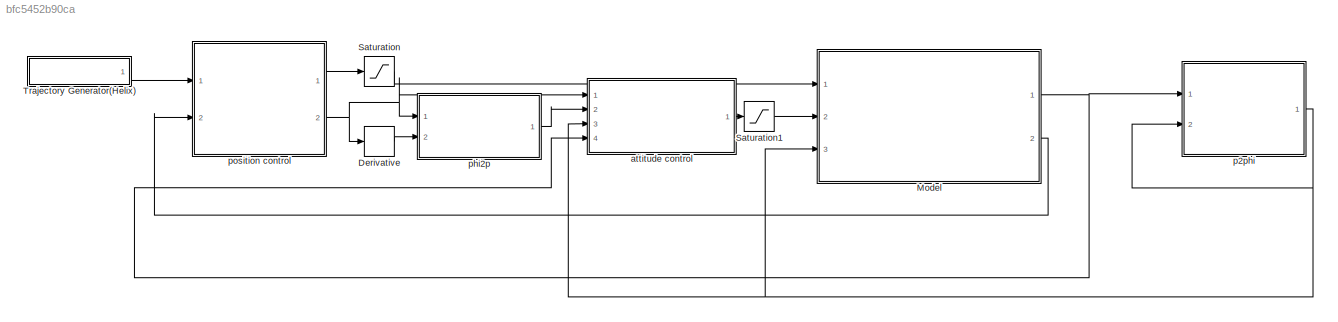
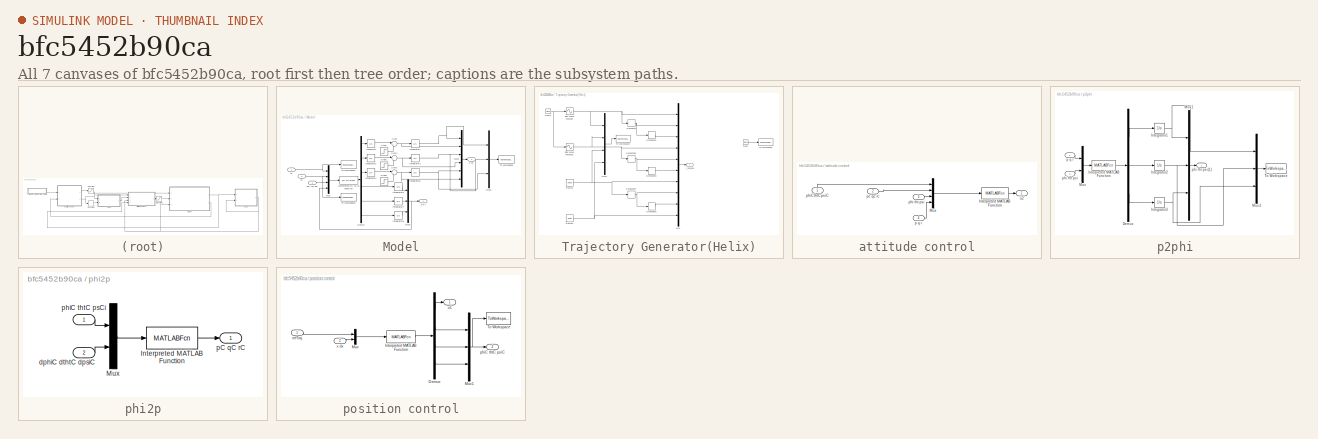
[diagram: thumbnail index - all 7 canvases of the model, root first then tree order]
MODEL slx_bfc5452b90ca
KIND model
CONFIG AbsTol = auto
CONFIG EnableMultiTasking = on
CONFIG FixedStep = 0.01
CONFIG MaxStep = auto
CONFIG MinStep = auto
CONFIG RelTol = 1e-3
CONFIG SampleTimeConstraint = Unconstrained
CONFIG SolverName = ode3
CONFIG StartTime = 0.0
CONFIG StopTime = 60
BLOCK [Derivative] Derivative
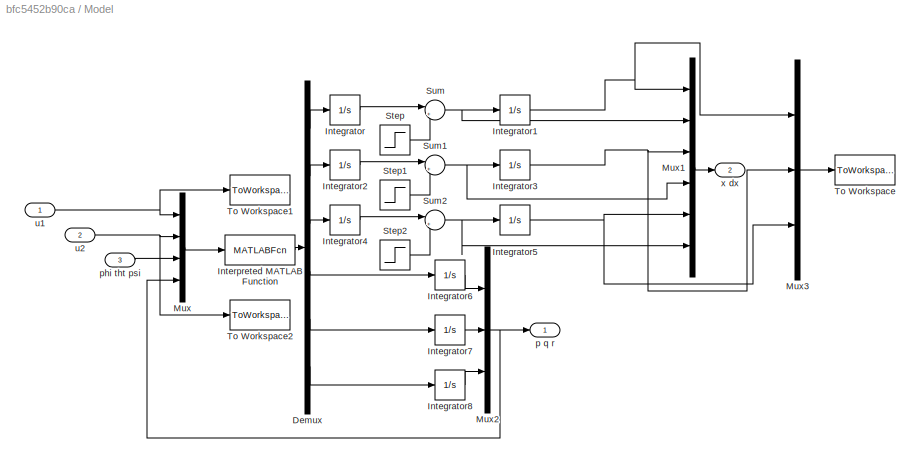
BLOCK [SubSystem] Model
  Ports = [3, 2]
  RequestExecContextInheritance = off
BLOCK [Demux] Model/Demux
  Outputs = 6
  Ports = [1, 6]
BLOCK [Integrator] Model/Integrator
  Ports = [1, 1]
BLOCK [Integrator] Model/Integrator1
  Ports = [1, 1]
BLOCK [Integrator] Model/Integrator2
  Ports = [1, 1]
BLOCK [Integrator] Model/Integrator3
  InitialCondition = 8
  Ports = [1, 1]
BLOCK [Integrator] Model/Integrator4
  Ports = [1, 1]
BLOCK [Integrator] Model/Integrator5
  InitialCondition = -8
  Ports = [1, 1]
BLOCK [Integrator] Model/Integrator6
  Ports = [1, 1]
BLOCK [Integrator] Model/Integrator7
  Ports = [1, 1]
BLOCK [Integrator] Model/Integrator8
  Ports = [1, 1]
BLOCK [MATLABFcn] Model/Interpreted MATLAB Function
  MATLABFcn = model2rotors(u)
  OutputDimensions = 6
  Ports = [1, 1]
BLOCK [Mux] Model/Mux
  DisplayOption = bar
  Ports = [4, 1]
BLOCK [Mux] Model/Mux1
  DisplayOption = bar
  Inputs = 6
  Ports = [6, 1]
BLOCK [Mux] Model/Mux2
  DisplayOption = bar
  Inputs = 3
  Ports = [3, 1]
BLOCK [Mux] Model/Mux3
  DisplayOption = bar
  Inputs = 3
  Ports = [3, 1]
BLOCK [Step] Model/Step
  After = 0
  SampleTime = 0
  Time = 25
BLOCK [Step] Model/Step1
  After = 0
  SampleTime = 0
  Time = 25
BLOCK [Step] Model/Step2
  After = 0
  SampleTime = 0
  Time = 25
BLOCK [Sum] Model/Sum
  Inputs = |++
  Ports = [2, 1]
BLOCK [Sum] Model/Sum1
  Inputs = |++
  Ports = [2, 1]
BLOCK [Sum] Model/Sum2
  Inputs = |++
  Ports = [2, 1]
BLOCK [ToWorkspace] Model/To Workspace
  FixptAsFi = on
  MaxDataPoints = inf
  Ports = [1]
  SampleTime = -1
  VariableName = xyz
BLOCK [ToWorkspace] Model/To Workspace1
  FixptAsFi = on
  MaxDataPoints = inf
  Ports = [1]
  SampleTime = -1
  VariableName = u1
BLOCK [ToWorkspace] Model/To Workspace2
  FixptAsFi = on
  MaxDataPoints = inf
  Ports = [1]
  SampleTime = -1
  VariableName = u2
BLOCK [Outport] Model/p q r
BLOCK [Inport] Model/phi tht psi
  Port = 3
BLOCK [Inport] Model/u1
BLOCK [Inport] Model/u2
  Port = 2
BLOCK [Outport] Model/x dx
  Port = 2
BLOCK [Saturate] Saturation
  LowerLimit = 0
  UpperLimit = 2*m*g
BLOCK [Saturate] Saturation1
  LowerLimit = -0.2
  UpperLimit = 0.2
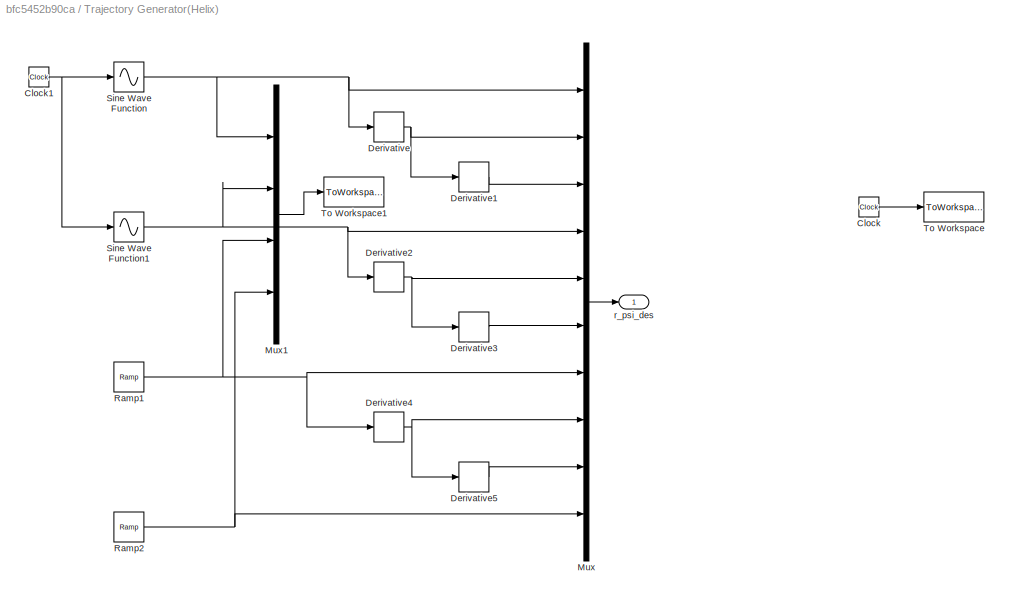
BLOCK [SubSystem] Trajectory Generator(Helix)
  Ports = [0, 1]
  RequestExecContextInheritance = off
BLOCK [Clock] Trajectory Generator(Helix)/Clock
BLOCK [Clock] Trajectory Generator(Helix)/Clock1
BLOCK [Derivative] Trajectory Generator(Helix)/Derivative
BLOCK [Derivative] Trajectory Generator(Helix)/Derivative1
BLOCK [Derivative] Trajectory Generator(Helix)/Derivative2
BLOCK [Derivative] Trajectory Generator(Helix)/Derivative3
BLOCK [Derivative] Trajectory Generator(Helix)/Derivative4
BLOCK [Derivative] Trajectory Generator(Helix)/Derivative5
BLOCK [Mux] Trajectory Generator(Helix)/Mux
  DisplayOption = bar
  Inputs = 10
  Ports = [10, 1]
BLOCK [Mux] Trajectory Generator(Helix)/Mux1
  DisplayOption = bar
  Ports = [4, 1]
BLOCK [Reference] Trajectory Generator(Helix)/Ramp1  REF=simulink/Sources/Ramp
  Ports = [0, 1]
  SourceBlock = simulink/Sources/Ramp
  SourceProductBaseCode = SL
  SourceType = Ramp
BLOCK [Reference] Trajectory Generator(Helix)/Ramp2  REF=simulink/Sources/Ramp
  Ports = [0, 1]
  SourceBlock = simulink/Sources/Ramp
  SourceProductBaseCode = SL
  SourceType = Ramp
BLOCK [Sin] Trajectory Generator(Helix)/Sine Wave Function
  Amplitude = 8
  Frequency = 0.1
  Ports = [1, 1]
  SampleTime = 0
  TimeSource = Use external signal
BLOCK [Sin] Trajectory Generator(Helix)/Sine Wave Function1
  Amplitude = 8
  Frequency = 0.1
  Phase = pi/2
  Ports = [1, 1]
  SampleTime = 0
  TimeSource = Use external signal
BLOCK [ToWorkspace] Trajectory Generator(Helix)/To Workspace
  FixptAsFi = on
  MaxDataPoints = inf
  Ports = [1]
  SampleTime = -1
  VariableName = t
BLOCK [ToWorkspace] Trajectory Generator(Helix)/To Workspace1
  FixptAsFi = on
  MaxDataPoints = inf
  Ports = [1]
  SampleTime = -1
  VariableName = ref
BLOCK [Outport] Trajectory Generator(Helix)/r_psi_des
BLOCK [SubSystem] attitude control
  Ports = [4, 1]
  RequestExecContextInheritance = off
BLOCK [MATLABFcn] attitude control/Interpreted MATLAB Function
  MATLABFcn = attitude_control(u)
  OutputDimensions = 3
  Ports = [1, 1]
BLOCK [Mux] attitude control/Mux
  DisplayOption = bar
  Ports = [4, 1]
BLOCK [Inport] attitude control/p q r
  Port = 4
BLOCK [Inport] attitude control/pc qc rc
  Port = 2
BLOCK [Inport] attitude control/phi tht psi
  Port = 3
BLOCK [Inport] attitude control/phiC thtC psiC
  NameLocation = right
BLOCK [Outport] attitude control/u2
BLOCK [SubSystem] p2phi
  Ports = [2, 1]
  RequestExecContextInheritance = off
BLOCK [Demux] p2phi/Demux
  Outputs = 3
  Ports = [1, 3]
BLOCK [Integrator] p2phi/Integrator1
  Ports = [1, 1]
BLOCK [Integrator] p2phi/Integrator2
  Ports = [1, 1]
BLOCK [Integrator] p2phi/Integrator3
  Ports = [1, 1]
BLOCK [MATLABFcn] p2phi/Interpreted MATLAB Function
  MATLABFcn = pqr2dThtdPhidPsi(u)
  OutputDimensions = 3
  Ports = [1, 1]
BLOCK [Mux] p2phi/Mux
  DisplayOption = bar
  Inputs = 2
  Ports = [2, 1]
BLOCK [Mux] p2phi/Mux1
  DisplayOption = bar
  Inputs = 3
  Ports = [3, 1]
BLOCK [Mux] p2phi/Mux3
  DisplayOption = bar
  Inputs = 3
  Ports = [3, 1]
BLOCK [ToWorkspace] p2phi/To Workspace
  FixptAsFi = on
  MaxDataPoints = inf
  Ports = [1]
  SampleTime = -1
  VariableName = phi_tht_psi
BLOCK [Inport] p2phi/p q r
BLOCK [Inport] p2phi/phi tht psi
  Port = 2
BLOCK [Outport] p2phi/phi tht psi(1)
BLOCK [SubSystem] phi2p
  Ports = [2, 1]
  RequestExecContextInheritance = off
BLOCK [MATLABFcn] phi2p/Interpreted MATLAB Function
  MATLABFcn = dThtdPhidPsi2pqr(u)
  OutputDimensions = 3
  Ports = [1, 1]
BLOCK [Mux] phi2p/Mux
  DisplayOption = bar
  Inputs = 2
  Ports = [2, 1]
BLOCK [Inport] phi2p/dphiC dthtC dpsiC
  Port = 2
BLOCK [Outport] phi2p/pC qC rC
BLOCK [Inport] phi2p/phiC thtC psCi
BLOCK [SubSystem] position control
  Ports = [2, 2]
  RequestExecContextInheritance = off
BLOCK [Demux] position control/Demux
  Ports = [1, 4]
BLOCK [MATLABFcn] position control/Interpreted MATLAB Function
  MATLABFcn = position_control(u)
  OutputDimensions = 4
  Ports = [1, 1]
BLOCK [Mux] position control/Mux
  DisplayOption = bar
  Inputs = 2
  Ports = [2, 1]
BLOCK [Mux] position control/Mux1
  DisplayOption = bar
  Inputs = 3
  Ports = [3, 1]
BLOCK [ToWorkspace] position control/To Workspace
  FixptAsFi = on
  MaxDataPoints = inf
  Ports = [1]
  SampleTime = -1
  VariableName = angc
BLOCK [Outport] position control/phiC thtC psiC
  Port = 2
BLOCK [Inport] position control/refTraj
BLOCK [Outport] position control/u1
BLOCK [Inport] position control/x dx
  Port = 2
LINE Derivative:1 -> phi2p:2
LINE Model/Demux:1 -> Model/Integrator:1
LINE Model/Demux:2 -> Model/Integrator2:1
LINE Model/Demux:3 -> Model/Integrator4:1
LINE Model/Demux:4 -> Model/Integrator6:1
LINE Model/Demux:5 -> Model/Integrator7:1
LINE Model/Demux:6 -> Model/Integrator8:1
NET Model/Integrator1:1 -> Model/Mux1:1, Model/Mux3:1
LINE Model/Integrator2:1 -> Model/Sum1:1
NET Model/Integrator3:1 -> Model/Mux1:3, Model/Mux3:2
LINE Model/Integrator4:1 -> Model/Sum2:1
NET Model/Integrator5:1 -> Model/Mux1:5, Model/Mux3:3
LINE Model/Integrator6:1 -> Model/Mux2:1
LINE Model/Integrator7:1 -> Model/Mux2:2
LINE Model/Integrator8:1 -> Model/Mux2:3
LINE Model/Integrator:1 -> Model/Sum:1
LINE Model/Interpreted MATLAB Function:1 -> Model/Demux:1
LINE Model/Mux1:1 -> Model/x dx:1
NET Model/Mux2:1 -> Model/Mux:4, Model/p q r:1
LINE Model/Mux3:1 -> Model/To Workspace:1
LINE Model/Mux:1 -> Model/Interpreted MATLAB Function:1
LINE Model/Step1:1 -> Model/Sum1:2
LINE Model/Step2:1 -> Model/Sum2:2
LINE Model/Step:1 -> Model/Sum:2
NET Model/Sum1:1 -> Model/Integrator3:1, Model/Mux1:4
NET Model/Sum2:1 -> Model/Integrator5:1, Model/Mux1:6
NET Model/Sum:1 -> Model/Integrator1:1, Model/Mux1:2
LINE Model/phi tht psi:1 -> Model/Mux:3
NET Model/u1:1 -> Model/Mux:1, Model/To Workspace1:1
NET Model/u2:1 -> Model/Mux:2, Model/To Workspace2:1
NET Model:1 -> attitude control:4, p2phi:1
LINE Model:2 -> position control:2
LINE Saturation1:1 -> Model:2
LINE Saturation:1 -> Model:1
NET Trajectory Generator(Helix)/Clock1:1 -> Trajectory Generator(Helix)/Sine Wave Function1:1, Trajectory Generator(Helix)/Sine Wave Function:1
LINE Trajectory Generator(Helix)/Clock:1 -> Trajectory Generator(Helix)/To Workspace:1
LINE Trajectory Generator(Helix)/Derivative1:1 -> Trajectory Generator(Helix)/Mux:3
NET Trajectory Generator(Helix)/Derivative2:1 -> Trajectory Generator(Helix)/Derivative3:1, Trajectory Generator(Helix)/Mux:5
LINE Trajectory Generator(Helix)/Derivative3:1 -> Trajectory Generator(Helix)/Mux:6
NET Trajectory Generator(Helix)/Derivative4:1 -> Trajectory Generator(Helix)/Derivative5:1, Trajectory Generator(Helix)/Mux:8
LINE Trajectory Generator(Helix)/Derivative5:1 -> Trajectory Generator(Helix)/Mux:9
NET Trajectory Generator(Helix)/Derivative:1 -> Trajectory Generator(Helix)/Derivative1:1, Trajectory Generator(Helix)/Mux:2
LINE Trajectory Generator(Helix)/Mux1:1 -> Trajectory Generator(Helix)/To Workspace1:1
LINE Trajectory Generator(Helix)/Mux:1 -> Trajectory Generator(Helix)/r_psi_des:1
NET Trajectory Generator(Helix)/Ramp1:1 -> Trajectory Generator(Helix)/Derivative4:1, Trajectory Generator(Helix)/Mux1:3, Trajectory Generator(Helix)/Mux:7
NET Trajectory Generator(Helix)/Ramp2:1 -> Trajectory Generator(Helix)/Mux1:4, Trajectory Generator(Helix)/Mux:10
NET Trajectory Generator(Helix)/Sine Wave Function1:1 -> Trajectory Generator(Helix)/Derivative2:1, Trajectory Generator(Helix)/Mux1:2, Trajectory Generator(Helix)/Mux:4
NET Trajectory Generator(Helix)/Sine Wave Function:1 -> Trajectory Generator(Helix)/Derivative:1, Trajectory Generator(Helix)/Mux1:1, Trajectory Generator(Helix)/Mux:1
LINE Trajectory Generator(Helix):1 -> position control:1
LINE attitude control/Interpreted MATLAB Function:1 -> attitude control/u2:1
LINE attitude control/Mux:1 -> attitude control/Interpreted MATLAB Function:1
LINE attitude control/p q r:1 -> attitude control/Mux:4
LINE attitude control/pc qc rc:1 -> attitude control/Mux:2
LINE attitude control/phi tht psi:1 -> attitude control/Mux:3
LINE attitude control/phiC thtC psiC:1 -> attitude control/Mux:1
LINE attitude control:1 -> Saturation1:1
LINE p2phi/Demux:1 -> p2phi/Integrator1:1
LINE p2phi/Demux:2 -> p2phi/Integrator2:1
LINE p2phi/Demux:3 -> p2phi/Integrator3:1
NET p2phi/Integrator1:1 -> p2phi/Mux1:1, p2phi/Mux3:1
NET p2phi/Integrator2:1 -> p2phi/Mux1:2, p2phi/Mux3:2
NET p2phi/Integrator3:1 -> p2phi/Mux1:3, p2phi/Mux3:3
LINE p2phi/Interpreted MATLAB Function:1 -> p2phi/Demux:1
LINE p2phi/Mux1:1 -> p2phi/phi tht psi(1):1
LINE p2phi/Mux3:1 -> p2phi/To Workspace:1
LINE p2phi/Mux:1 -> p2phi/Interpreted MATLAB Function:1
LINE p2phi/p q r:1 -> p2phi/Mux:1
LINE p2phi/phi tht psi:1 -> p2phi/Mux:2
NET p2phi:1 -> Model:3, attitude control:3, p2phi:2
LINE phi2p/Interpreted MATLAB Function:1 -> phi2p/pC qC rC:1
LINE phi2p/Mux:1 -> phi2p/Interpreted MATLAB Function:1
LINE phi2p/dphiC dthtC dpsiC:1 -> phi2p/Mux:2
LINE phi2p/phiC thtC psCi:1 -> phi2p/Mux:1
LINE phi2p:1 -> attitude control:2
LINE position control/Demux:1 -> position control/u1:1
LINE position control/Demux:2 -> position control/Mux1:1
LINE position control/Demux:3 -> position control/Mux1:2
LINE position control/Demux:4 -> position control/Mux1:3
LINE position control/Interpreted MATLAB Function:1 -> position control/Demux:1
NET position control/Mux1:1 -> position control/To Workspace:1, position control/phiC thtC psiC:1
LINE position control/Mux:1 -> position control/Interpreted MATLAB Function:1
LINE position control/refTraj:1 -> position control/Mux:1
LINE position control/x dx:1 -> position control/Mux:2
LINE position control:1 -> Saturation:1
NET position control:2 -> Derivative:1, attitude control:1, phi2p:1
note: NET lines group one-source signal fan-out (src -> all destinations, sorted); 1:1 wires keep LINE
